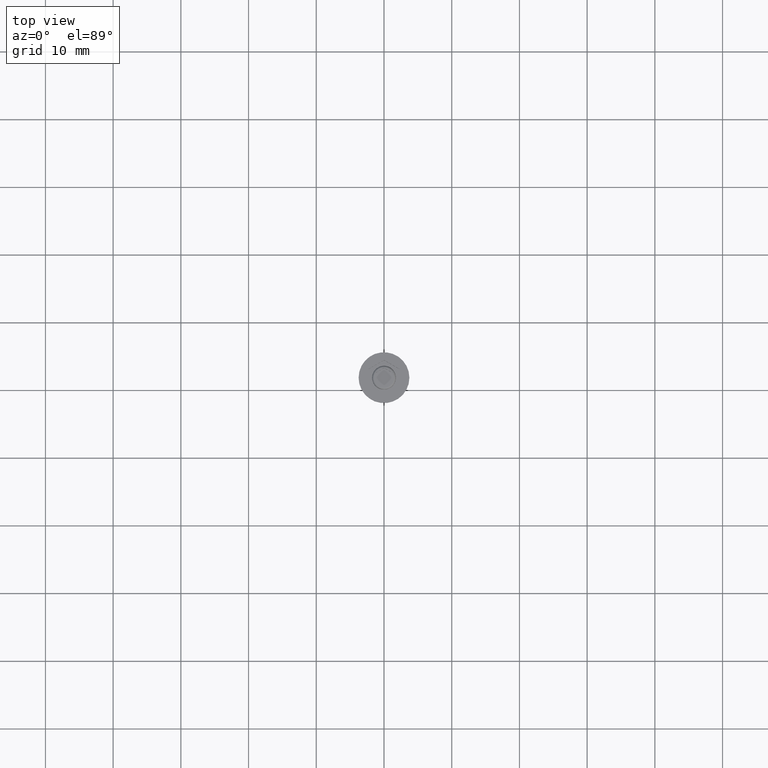
[diagram: clean part render]
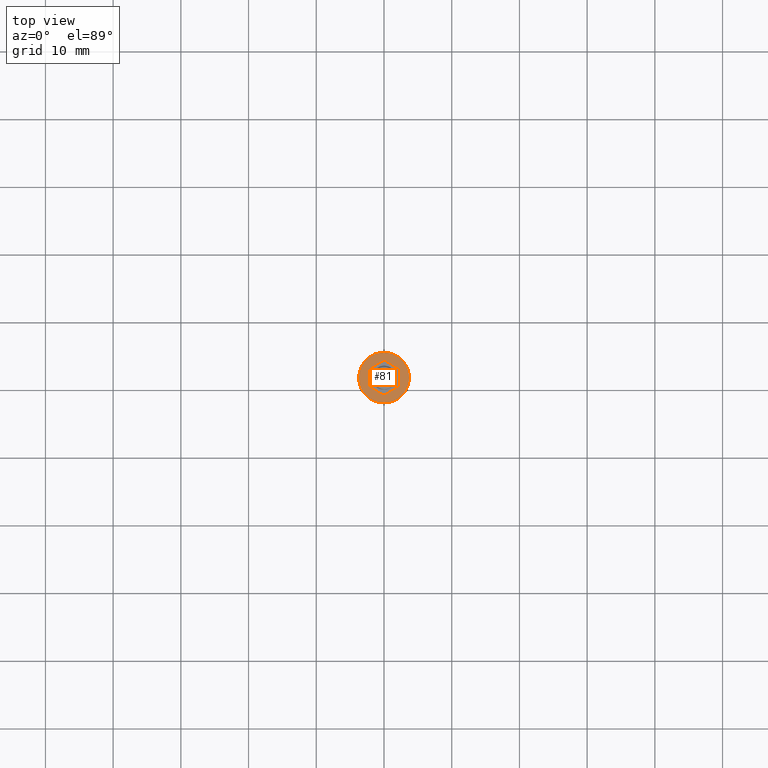
[diagram: same view with one face highlighted and labeled with its STEP entity id]
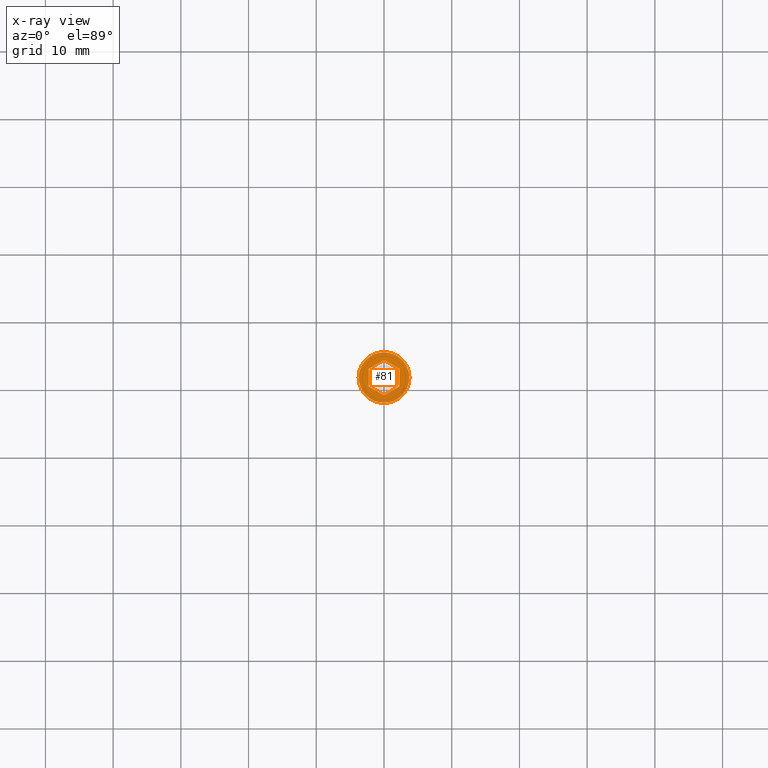
[diagram: x-ray of the same camera — body ghosted, the highlighted face saturated]
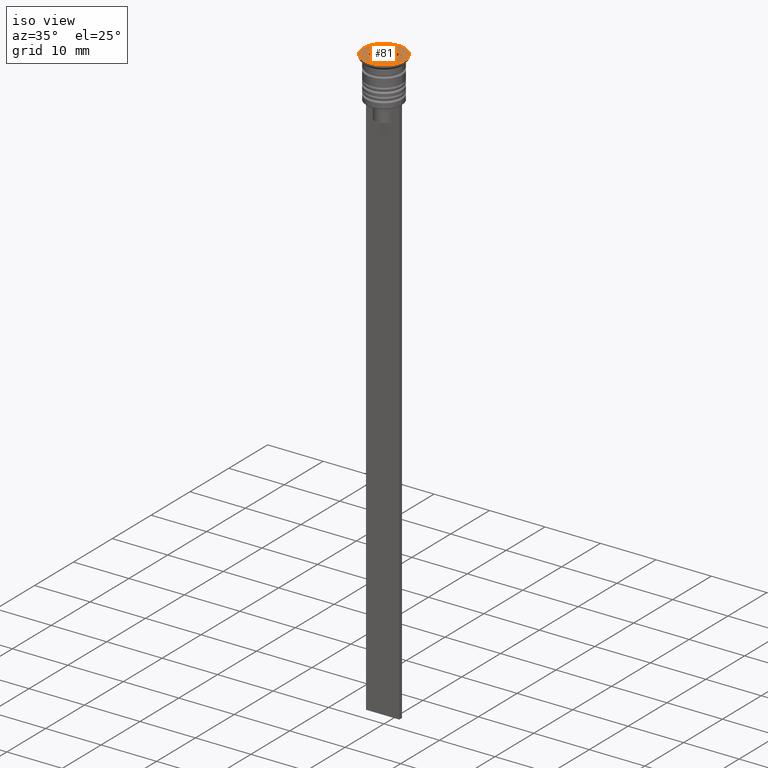
[diagram: same view with one face highlighted and labeled with its STEP entity id]
A machine part, top view. The second image highlights one B-rep face of the part: STEP entity #81.
The next image is the same camera in x-ray: the body ghosted, the highlighted face saturated — about 0% of this face is hidden behind the body in this view.
A second angle (iso view) of the same face is appended — the face is thin or edge-on in the first view.
In plain terms, the highlighted planar face has unit normal (0, -0, 1).
Its self-contained STEP definition (entity closure, byte-faithful):
#56 = AXIS2_PLACEMENT_3D ( 'NONE', #260, #1790, #465 ) ;
#64 = DIRECTION ( 'NONE',  ( 1.000000000000000000, 0.000000000000000000, 0.000000000000000000 ) ) ;
#72 = CARTESIAN_POINT ( 'NONE',  ( 3.750000000000000000, 0.000000000000000000, 0.000000000000000000 ) ) ;
#81 = ADVANCED_FACE ( 'NONE', ( #152, #344 ), #316, .T. ) ;
#121 = EDGE_CURVE ( 'NONE', #1197, #122, #651, .T. ) ;
#122 = VERTEX_POINT ( 'NONE', #2022 ) ;
#137 = EDGE_CURVE ( 'NONE', #122, #1153, #682, .T. ) ;
#138 = LINE ( 'NONE', #1772, #1112 ) ;
#152 = FACE_BOUND ( 'NONE', #617, .T. ) ;
#216 = CARTESIAN_POINT ( 'NONE',  ( -2.250000000000000888, 1.299038105676658228, 0.000000000000000000 ) ) ;
#260 = CARTESIAN_POINT ( 'NONE',  ( 0.000000000000000000, 0.000000000000000000, 0.000000000000000000 ) ) ;
#316 = PLANE ( 'NONE',  #1171 ) ;
#319 = VERTEX_POINT ( 'NONE', #72 ) ;
#337 = VECTOR ( 'NONE', #2035, 1000.000000000000000 ) ;
#344 = FACE_OUTER_BOUND ( 'NONE', #1621, .T. ) ;
#350 = DIRECTION ( 'NONE',  ( 1.669238443041287429E-16, 1.000000000000000000, 0.000000000000000000 ) ) ;
#356 = CARTESIAN_POINT ( 'NONE',  ( -2.250000000000000888, -1.299038105676658228, 0.000000000000000000 ) ) ;
#362 = VECTOR ( 'NONE', #1023, 1000.000000000000000 ) ;
#370 = EDGE_CURVE ( 'NONE', #2036, #319, #1316, .T. ) ;
#406 = VECTOR ( 'NONE', #1825, 1000.000000000000000 ) ;
#465 = DIRECTION ( 'NONE',  ( 1.000000000000000000, 0.000000000000000000, 0.000000000000000000 ) ) ;
#476 = EDGE_CURVE ( 'NONE', #319, #2036, #1103, .T. ) ;
#617 = EDGE_LOOP ( 'NONE', ( #1288, #2008, #1053, #2000, #1888, #1042 ) ) ;
#637 = DIRECTION ( 'NONE',  ( -0.8660254037844388186, 0.4999999999999997224, 0.000000000000000000 ) ) ;
#651 = LINE ( 'NONE', #830, #362 ) ;
#682 = LINE ( 'NONE', #1337, #406 ) ;
#704 = CARTESIAN_POINT ( 'NONE',  ( -2.250000000000000888, 1.299038105676658228, 0.000000000000000000 ) ) ;
#731 = EDGE_CURVE ( 'NONE', #1153, #1359, #1523, .T. ) ;
#758 = VECTOR ( 'NONE', #350, 1000.000000000000000 ) ;
#782 = ORIENTED_EDGE ( 'NONE', *, *, #370, .T. ) ;
#830 = CARTESIAN_POINT ( 'NONE',  ( -2.250000000000000888, -1.299038105676658228, 0.000000000000000000 ) ) ;
#858 = CARTESIAN_POINT ( 'NONE',  ( 0.000000000000000000, 0.000000000000000000, 0.000000000000000000 ) ) ;
#1022 = EDGE_CURVE ( 'NONE', #1359, #1768, #1158, .T. ) ;
#1023 = DIRECTION ( 'NONE',  ( 0.8660254037844387076, -0.4999999999999998335, 0.000000000000000000 ) ) ;
#1024 = LINE ( 'NONE', #704, #337 ) ;
#1042 = ORIENTED_EDGE ( 'NONE', *, *, #1642, .F. ) ;
#1053 = ORIENTED_EDGE ( 'NONE', *, *, #137, .F. ) ;
#1096 = ORIENTED_EDGE ( 'NONE', *, *, #476, .T. ) ;
#1103 = CIRCLE ( 'NONE', #56, 3.750000000000000000 ) ;
#1112 = VECTOR ( 'NONE', #1608, 1000.000000000000000 ) ;
#1128 = EDGE_CURVE ( 'NONE', #1571, #1197, #1024, .T. ) ;
#1153 = VERTEX_POINT ( 'NONE', #1689 ) ;
#1158 = LINE ( 'NONE', #1832, #1847 ) ;
#1171 = AXIS2_PLACEMENT_3D ( 'NONE', #858, #1329, #1311 ) ;
#1194 = CARTESIAN_POINT ( 'NONE',  ( 2.250000000000000000, -1.299038105676658228, 0.000000000000000000 ) ) ;
#1197 = VERTEX_POINT ( 'NONE', #356 ) ;
#1288 = ORIENTED_EDGE ( 'NONE', *, *, #1022, .F. ) ;
#1311 = DIRECTION ( 'NONE',  ( 1.000000000000000000, 0.000000000000000000, 0.000000000000000000 ) ) ;
#1316 = CIRCLE ( 'NONE', #1917, 3.750000000000000000 ) ;
#1329 = DIRECTION ( 'NONE',  ( 0.000000000000000000, -0.000000000000000000, 1.000000000000000000 ) ) ;
#1337 = CARTESIAN_POINT ( 'NONE',  ( 2.224527942369933556E-16, -2.598076211353316456, 0.000000000000000000 ) ) ;
#1359 = VERTEX_POINT ( 'NONE', #2119 ) ;
#1387 = CARTESIAN_POINT ( 'NONE',  ( 0.000000000000000000, 0.000000000000000000, 0.000000000000000000 ) ) ;
#1523 = LINE ( 'NONE', #1194, #758 ) ;
#1565 = DIRECTION ( 'NONE',  ( -0.000000000000000000, -0.000000000000000000, 1.000000000000000000 ) ) ;
#1571 = VERTEX_POINT ( 'NONE', #216 ) ;
#1592 = CARTESIAN_POINT ( 'NONE',  ( 0.000000000000000000, 2.598076211353316012, 0.000000000000000000 ) ) ;
#1608 = DIRECTION ( 'NONE',  ( -0.8660254037844387076, -0.4999999999999999445, 0.000000000000000000 ) ) ;
#1621 = EDGE_LOOP ( 'NONE', ( #1096, #782 ) ) ;
#1642 = EDGE_CURVE ( 'NONE', #1768, #1571, #138, .T. ) ;
#1689 = CARTESIAN_POINT ( 'NONE',  ( 2.250000000000000000, -1.299038105676658228, 0.000000000000000000 ) ) ;
#1768 = VERTEX_POINT ( 'NONE', #1592 ) ;
#1772 = CARTESIAN_POINT ( 'NONE',  ( 0.000000000000000000, 2.598076211353316456, 0.000000000000000000 ) ) ;
#1790 = DIRECTION ( 'NONE',  ( -0.000000000000000000, -0.000000000000000000, 1.000000000000000000 ) ) ;
#1825 = DIRECTION ( 'NONE',  ( 0.8660254037844385966, 0.5000000000000001110, 0.000000000000000000 ) ) ;
#1832 = CARTESIAN_POINT ( 'NONE',  ( 2.250000000000000444, 1.299038105676659116, 0.000000000000000000 ) ) ;
#1847 = VECTOR ( 'NONE', #637, 1000.000000000000000 ) ;
#1888 = ORIENTED_EDGE ( 'NONE', *, *, #1128, .F. ) ;
#1917 = AXIS2_PLACEMENT_3D ( 'NONE', #1387, #1565, #64 ) ;
#2000 = ORIENTED_EDGE ( 'NONE', *, *, #121, .F. ) ;
#2008 = ORIENTED_EDGE ( 'NONE', *, *, #731, .F. ) ;
#2022 = CARTESIAN_POINT ( 'NONE',  ( 2.224527942369933556E-16, -2.598076211353316456, 0.000000000000000000 ) ) ;
#2035 = DIRECTION ( 'NONE',  ( 0.000000000000000000, -1.000000000000000000, 0.000000000000000000 ) ) ;
#2036 = VERTEX_POINT ( 'NONE', #2158 ) ;
#2119 = CARTESIAN_POINT ( 'NONE',  ( 2.250000000000000444, 1.299038105676659116, 0.000000000000000000 ) ) ;
#2158 = CARTESIAN_POINT ( 'NONE',  ( -3.750000000000000000, 4.592425496802573972E-16, 0.000000000000000000 ) ) ;